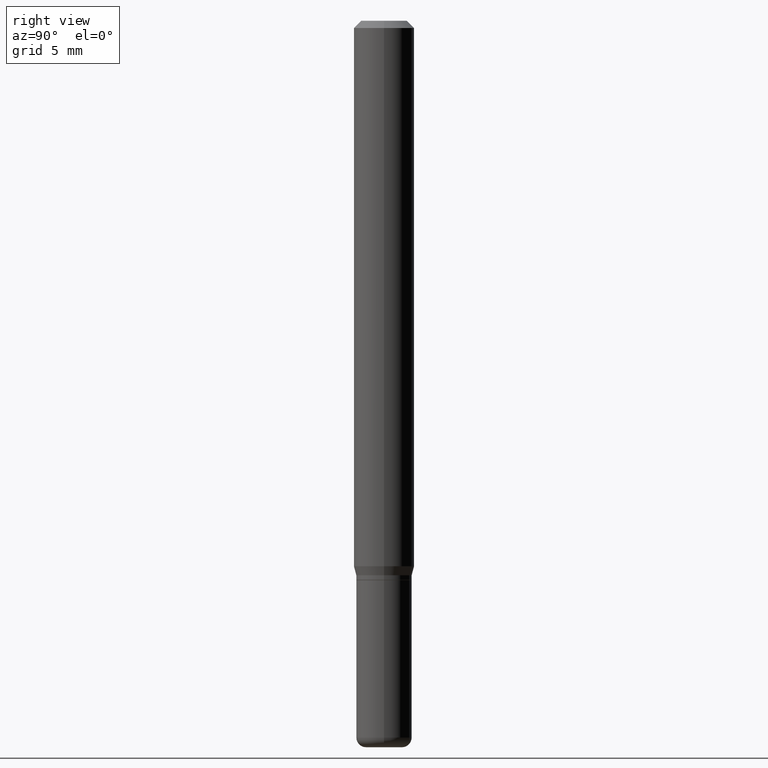
[diagram: clean part render]
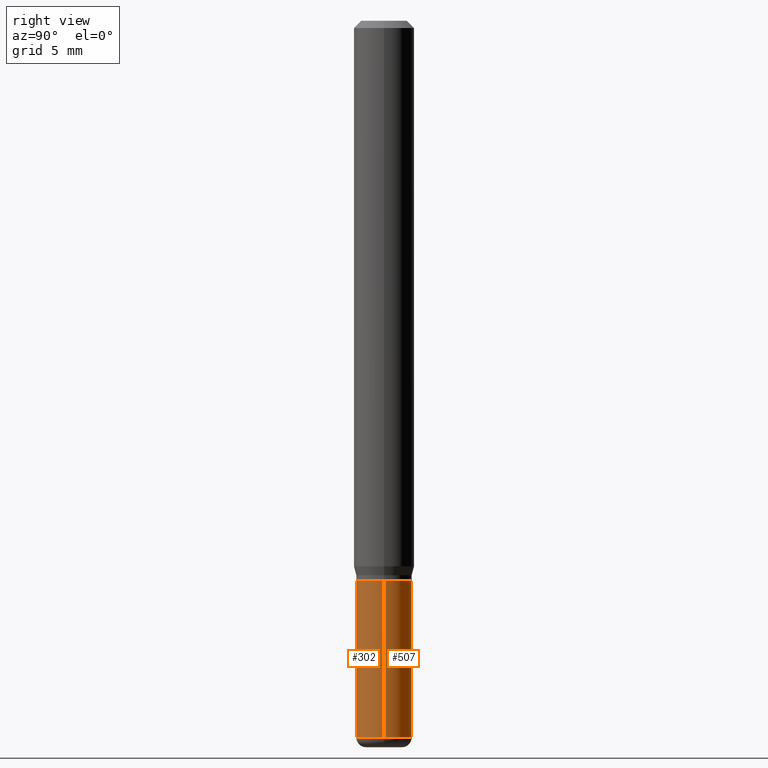
[diagram: same view with one multi-face feature highlighted, each face labeled with its STEP entity id]
A machine part, right view. The highlighted faces form ONE feature: a constant-radius fillet chain: 2 tangent blend faces with common blend radius 1.4605 mm. The faces share edges in the B-rep.
Their STEP definitions:
[1] entity #507 (Cylinder):
#8 = CARTESIAN_POINT ( 'NONE',  ( 2.824516471143833307E-29, -4.032660946363833383E-15, -1.155000000000000027 ) ) ;
#9 = DIRECTION ( 'NONE',  ( 1.000000000000000000, -6.982962677686265922E-15, 4.876176775795935793E-29 ) ) ;
#19 = VECTOR ( 'NONE', #26, 39.37007874015748143 ) ;
#26 = DIRECTION ( 'NONE',  ( -2.445468806185136877E-29, 3.491481338843145188E-15, 1.000000000000000000 ) ) ;
#30 = EDGE_CURVE ( 'NONE', #292, #223, #338, .T. ) ;
#37 = DIRECTION ( 'NONE',  ( -2.445468806185136877E-29, 3.491481338843145188E-15, 1.000000000000000000 ) ) ;
#46 = CARTESIAN_POINT ( 'NONE',  ( -0.05750000000000000250, -4.191464590863786555E-15, -1.155000000000000027 ) ) ;
#73 = LINE ( 'NONE', #381, #137 ) ;
#82 = CYLINDRICAL_SURFACE ( 'NONE', #312, 0.05750000000000001638 ) ;
#95 = LINE ( 'NONE', #352, #19 ) ;
#113 = VERTEX_POINT ( 'NONE', #428 ) ;
#137 = VECTOR ( 'NONE', #37, 39.37007874015748143 ) ;
#150 = AXIS2_PLACEMENT_3D ( 'NONE', #514, #265, #181 ) ;
#156 = CARTESIAN_POINT ( 'NONE',  ( -0.05750000000000003025, -4.191464590863786555E-15, -1.479999999999999982 ) ) ;
#181 = DIRECTION ( 'NONE',  ( 1.000000000000000000, -6.982962677686270655E-15, 0.000000000000000000 ) ) ;
#195 = AXIS2_PLACEMENT_3D ( 'NONE', #8, #236, #316 ) ;
#209 = CARTESIAN_POINT ( 'NONE',  ( 0.05750000000000003025, -5.568912735454815688E-15, -1.479999999999999982 ) ) ;
#218 = VERTEX_POINT ( 'NONE', #46 ) ;
#223 = VERTEX_POINT ( 'NONE', #156 ) ;
#236 = DIRECTION ( 'NONE',  ( -2.445468806185136597E-29, 3.491481338843145583E-15, 1.000000000000000000 ) ) ;
#244 = FACE_OUTER_BOUND ( 'NONE', #491, .T. ) ;
#256 = EDGE_CURVE ( 'NONE', #113, #218, #487, .T. ) ;
#265 = DIRECTION ( 'NONE',  ( -2.445468806185136597E-29, 3.491481338843145583E-15, 1.000000000000000000 ) ) ;
#275 = EDGE_CURVE ( 'NONE', #292, #113, #95, .T. ) ;
#278 = CARTESIAN_POINT ( 'NONE',  ( 0.000000000000000000, 0.000000000000000000, 0.000000000000000000 ) ) ;
#292 = VERTEX_POINT ( 'NONE', #209 ) ;
#312 = AXIS2_PLACEMENT_3D ( 'NONE', #278, #318, #9 ) ;
#316 = DIRECTION ( 'NONE',  ( 1.000000000000000000, -6.982962677686273810E-15, 0.000000000000000000 ) ) ;
#318 = DIRECTION ( 'NONE',  ( -2.445468806185136597E-29, 3.491481338843145583E-15, 1.000000000000000000 ) ) ;
#324 = ORIENTED_EDGE ( 'NONE', *, *, #275, .F. ) ;
#338 = CIRCLE ( 'NONE', #150, 0.05750000000000003025 ) ;
#343 = ORIENTED_EDGE ( 'NONE', *, *, #30, .T. ) ;
#352 = CARTESIAN_POINT ( 'NONE',  ( 0.05750000000000001638, -4.015203539669604147E-16, 2.803801646082663992E-30 ) ) ;
#364 = ORIENTED_EDGE ( 'NONE', *, *, #256, .F. ) ;
#381 = CARTESIAN_POINT ( 'NONE',  ( -0.05750000000000001638, 4.085620730620577232E-16, -2.828387676896571763E-30 ) ) ;
#405 = EDGE_CURVE ( 'NONE', #223, #218, #73, .T. ) ;
#428 = CARTESIAN_POINT ( 'NONE',  ( 0.05750000000000000250, -4.434181300330794192E-15, -1.155000000000000027 ) ) ;
#457 = ORIENTED_EDGE ( 'NONE', *, *, #405, .T. ) ;
#487 = CIRCLE ( 'NONE', #195, 0.05750000000000000250 ) ;
#491 = EDGE_LOOP ( 'NONE', ( #343, #457, #364, #324 ) ) ;
#507 = ADVANCED_FACE ( 'NONE', ( #244 ), #82, .T. ) ;
#514 = CARTESIAN_POINT ( 'NONE',  ( 3.619293833154002365E-29, -5.167392381487854879E-15, -1.479999999999999982 ) ) ;
[2] entity #302 (Cylinder):
#19 = VECTOR ( 'NONE', #26, 39.37007874015748143 ) ;
#26 = DIRECTION ( 'NONE',  ( -2.445468806185136877E-29, 3.491481338843145188E-15, 1.000000000000000000 ) ) ;
#37 = DIRECTION ( 'NONE',  ( -2.445468806185136877E-29, 3.491481338843145188E-15, 1.000000000000000000 ) ) ;
#46 = CARTESIAN_POINT ( 'NONE',  ( -0.05750000000000000250, -4.191464590863786555E-15, -1.155000000000000027 ) ) ;
#71 = CIRCLE ( 'NONE', #349, 0.05750000000000003025 ) ;
#73 = LINE ( 'NONE', #381, #137 ) ;
#76 = DIRECTION ( 'NONE',  ( -2.445468806185136597E-29, 3.491481338843145583E-15, 1.000000000000000000 ) ) ;
#95 = LINE ( 'NONE', #352, #19 ) ;
#98 = ORIENTED_EDGE ( 'NONE', *, *, #403, .T. ) ;
#110 = ORIENTED_EDGE ( 'NONE', *, *, #405, .F. ) ;
#113 = VERTEX_POINT ( 'NONE', #428 ) ;
#137 = VECTOR ( 'NONE', #37, 39.37007874015748143 ) ;
#156 = CARTESIAN_POINT ( 'NONE',  ( -0.05750000000000003025, -4.191464590863786555E-15, -1.479999999999999982 ) ) ;
#167 = DIRECTION ( 'NONE',  ( -2.445468806185136597E-29, 3.491481338843145583E-15, 1.000000000000000000 ) ) ;
#186 = CARTESIAN_POINT ( 'NONE',  ( 2.824516471143833307E-29, -4.032660946363833383E-15, -1.155000000000000027 ) ) ;
#209 = CARTESIAN_POINT ( 'NONE',  ( 0.05750000000000003025, -5.568912735454815688E-15, -1.479999999999999982 ) ) ;
#218 = VERTEX_POINT ( 'NONE', #46 ) ;
#223 = VERTEX_POINT ( 'NONE', #156 ) ;
#259 = ORIENTED_EDGE ( 'NONE', *, *, #275, .T. ) ;
#263 = CIRCLE ( 'NONE', #305, 0.05750000000000000250 ) ;
#275 = EDGE_CURVE ( 'NONE', #292, #113, #95, .T. ) ;
#292 = VERTEX_POINT ( 'NONE', #209 ) ;
#299 = DIRECTION ( 'NONE',  ( 1.000000000000000000, -6.982962677686265922E-15, 4.876176775795935793E-29 ) ) ;
#302 = ADVANCED_FACE ( 'NONE', ( #359 ), #325, .T. ) ;
#305 = AXIS2_PLACEMENT_3D ( 'NONE', #186, #76, #468 ) ;
#307 = DIRECTION ( 'NONE',  ( 1.000000000000000000, -6.982962677686270655E-15, 0.000000000000000000 ) ) ;
#325 = CYLINDRICAL_SURFACE ( 'NONE', #497, 0.05750000000000001638 ) ;
#349 = AXIS2_PLACEMENT_3D ( 'NONE', #511, #470, #307 ) ;
#352 = CARTESIAN_POINT ( 'NONE',  ( 0.05750000000000001638, -4.015203539669604147E-16, 2.803801646082663992E-30 ) ) ;
#359 = FACE_OUTER_BOUND ( 'NONE', #417, .T. ) ;
#376 = ORIENTED_EDGE ( 'NONE', *, *, #411, .F. ) ;
#381 = CARTESIAN_POINT ( 'NONE',  ( -0.05750000000000001638, 4.085620730620577232E-16, -2.828387676896571763E-30 ) ) ;
#403 = EDGE_CURVE ( 'NONE', #223, #292, #71, .T. ) ;
#405 = EDGE_CURVE ( 'NONE', #223, #218, #73, .T. ) ;
#411 = EDGE_CURVE ( 'NONE', #218, #113, #263, .T. ) ;
#417 = EDGE_LOOP ( 'NONE', ( #110, #98, #259, #376 ) ) ;
#428 = CARTESIAN_POINT ( 'NONE',  ( 0.05750000000000000250, -4.434181300330794192E-15, -1.155000000000000027 ) ) ;
#468 = DIRECTION ( 'NONE',  ( 1.000000000000000000, -6.982962677686273810E-15, 0.000000000000000000 ) ) ;
#470 = DIRECTION ( 'NONE',  ( -2.445468806185136597E-29, 3.491481338843145583E-15, 1.000000000000000000 ) ) ;
#497 = AXIS2_PLACEMENT_3D ( 'NONE', #516, #167, #299 ) ;
#511 = CARTESIAN_POINT ( 'NONE',  ( 3.619293833154002365E-29, -5.167392381487854879E-15, -1.479999999999999982 ) ) ;
#516 = CARTESIAN_POINT ( 'NONE',  ( 0.000000000000000000, 0.000000000000000000, 0.000000000000000000 ) ) ;